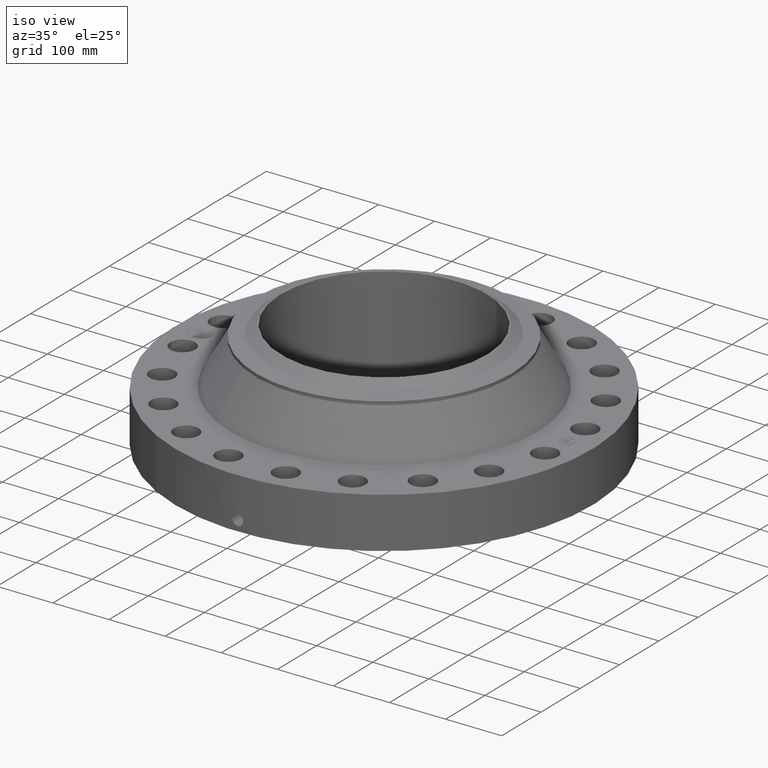
[diagram: clean part render]
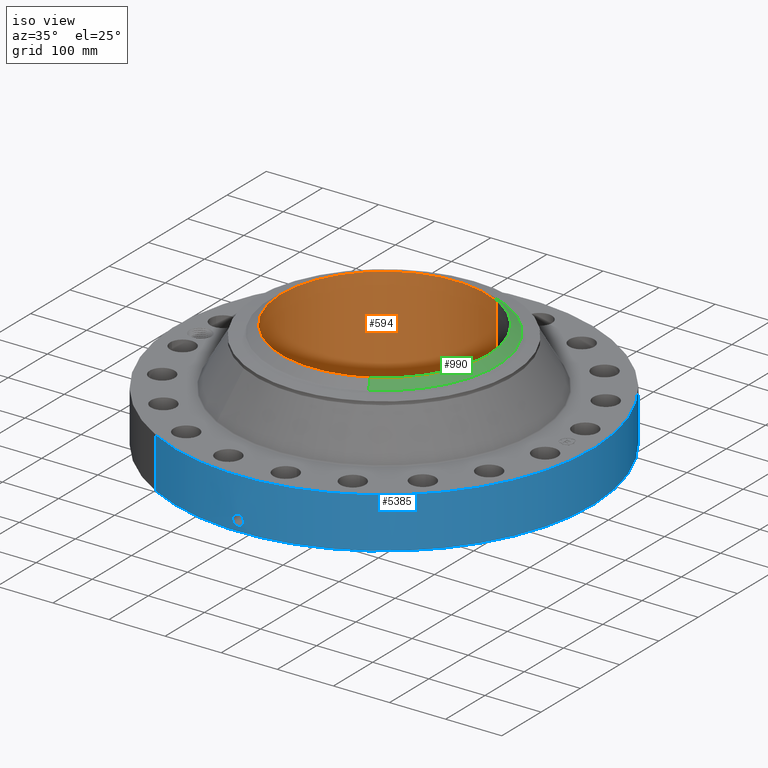
[diagram: same view with three faces highlighted in distinct colors, each labeled with its STEP entity id]
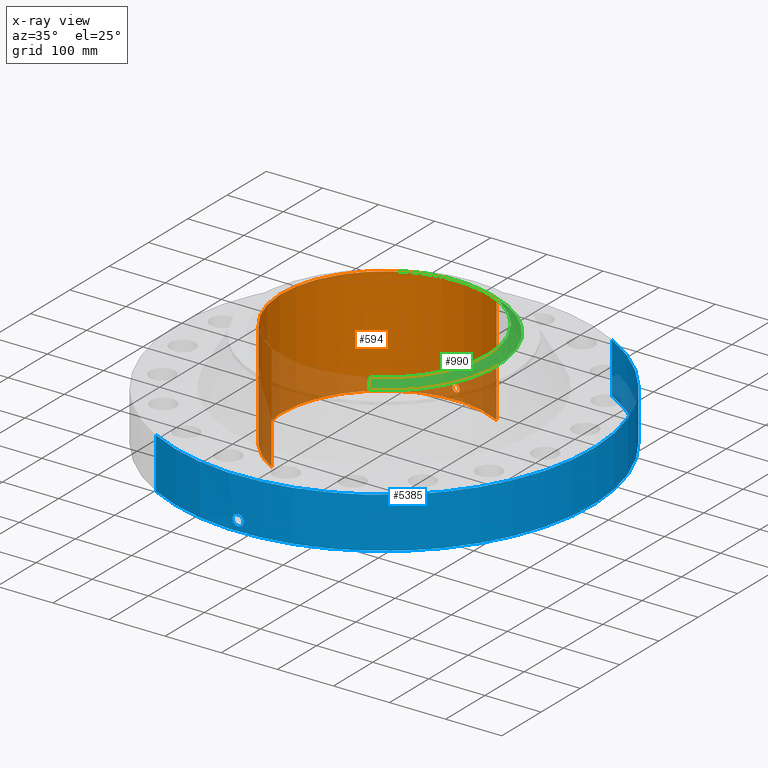
[diagram: x-ray of the same camera — body ghosted, the three highlighted faces saturated]
A machine part, iso view with three faces highlighted in distinct colors.
The next image is the same camera in x-ray (body ghosted, the three faces saturated) — at least one of them is partly hidden behind the body in this view.
Their STEP definitions:

[orange] entity #594 — the highlighted cylindrical surface (partial cylindrical patch) has radius 183.363 mm, axis along (0, 0, -1).
#232=AXIS2_PLACEMENT_3D('Cylinder Axis2P3D',#229,#230,#231) ;
#533=AXIS2_PLACEMENT_3D('Circle Axis2P3D',#531,#532,$) ;
#543=AXIS2_PLACEMENT_3D('Circle Axis2P3D',#541,#542,$) ;
#229=CARTESIAN_POINT('Axis2P3D Location',(0.,0.,3.78100000002)) ;
#238=CARTESIAN_POINT('Vertex',(3.4609729632,6.33526851431,7.56200000003)) ;
#240=CARTESIAN_POINT('Vertex',(-3.4609729632,-6.33526851431,7.56200000003)) ;
#243=CARTESIAN_POINT('Line Origine',(3.4609729632,6.33526851431,3.78100000002)) ;
#247=CARTESIAN_POINT('Vertex',(3.4609729632,6.33526851431,-6.15430716013E-014)) ;
#254=CARTESIAN_POINT('Vertex',(-3.4609729632,-6.33526851431,-6.15430716013E-014)) ;
#257=CARTESIAN_POINT('Line Origine',(-3.4609729632,-6.33526851431,3.78100000002)) ;
#531=CARTESIAN_POINT('Axis2P3D Location',(0.,0.,7.56200000003)) ;
#541=CARTESIAN_POINT('Axis2P3D Location',(0.,0.,-6.15430716013E-014)) ;
#553=CARTESIAN_POINT('Control Point',(0.219395640473,7.21566535763,0.869856384655)) ;
#554=CARTESIAN_POINT('Control Point',(0.194443477239,7.21642403969,0.915531013085)) ;
#555=CARTESIAN_POINT('Control Point',(0.157607221245,7.21743610595,0.954709037248)) ;
#556=CARTESIAN_POINT('Control Point',(0.111113039943,7.21842029589,0.983240979842)) ;
#557=CARTESIAN_POINT('Control Point',(0.0336798237454,7.2192033861,1.00588164333)) ;
#558=CARTESIAN_POINT('Control Point',(-0.0446639367624,7.21893285786,0.998057350616)) ;
#559=CARTESIAN_POINT('Control Point',(-0.0702916783782,7.21872283908,0.99204601083)) ;
#560=CARTESIAN_POINT('Control Point',(-0.14394530985,7.2177946796,0.964218564062)) ;
#561=CARTESIAN_POINT('Control Point',(-0.20323123165,7.21627949124,0.909512207771)) ;
#562=CARTESIAN_POINT('Control Point',(-0.232199349635,7.21528548081,0.863278998575)) ;
#563=CARTESIAN_POINT('Control Point',(-0.255838754644,7.21446805381,0.785129940067)) ;
#564=CARTESIAN_POINT('Control Point',(-0.248285892266,7.2147290081,0.705759511146)) ;
#565=CARTESIAN_POINT('Control Point',(-0.2420520418,7.21494752736,0.679192037329)) ;
#566=CARTESIAN_POINT('Control Point',(-0.232317387719,7.21527246594,0.653796715028)) ;
#567=CARTESIAN_POINT('Control Point',(-0.219395640473,7.21566535763,0.630143615351)) ;
#568=CARTESIAN_POINT('Vertex',(0.219395640473,7.21566535763,0.869856384655)) ;
#570=CARTESIAN_POINT('Vertex',(-0.219395640473,7.21566535763,0.630143615351)) ;
#574=CARTESIAN_POINT('Control Point',(-0.219395640473,7.21566535763,0.630143615351)) ;
#575=CARTESIAN_POINT('Control Point',(-0.194443477231,7.21642403969,0.584468986905)) ;
#576=CARTESIAN_POINT('Control Point',(-0.157607221219,7.21743610595,0.545290962731)) ;
#577=CARTESIAN_POINT('Control Point',(-0.11111303998,7.21842029589,0.516759020177)) ;
#578=CARTESIAN_POINT('Control Point',(-0.0336798237644,7.2192033861,0.494118356671)) ;
#579=CARTESIAN_POINT('Control Point',(0.0446639367618,7.21893285786,0.50194264939)) ;
#580=CARTESIAN_POINT('Control Point',(0.0702916783749,7.21872283908,0.507953989175)) ;
#581=CARTESIAN_POINT('Control Point',(0.143945309899,7.2177946796,0.535781435962)) ;
#582=CARTESIAN_POINT('Control Point',(0.203231231731,7.21627949124,0.59048779231)) ;
#583=CARTESIAN_POINT('Control Point',(0.232199349602,7.21528548081,0.636721001322)) ;
#584=CARTESIAN_POINT('Control Point',(0.255838754649,7.21446805381,0.714870059882)) ;
#585=CARTESIAN_POINT('Control Point',(0.248285892267,7.2147290081,0.794240488858)) ;
#586=CARTESIAN_POINT('Control Point',(0.2420520418,7.21494752736,0.820807962677)) ;
#587=CARTESIAN_POINT('Control Point',(0.232317387719,7.21527246594,0.846203284978)) ;
#588=CARTESIAN_POINT('Control Point',(0.219395640473,7.21566535763,0.869856384655)) ;
#230=DIRECTION('Axis2P3D Direction',(0.,0.,-0.0393700787402)) ;
#231=DIRECTION('Axis2P3D XDirection',(-0.0188750212049,-0.0345504945626,0.)) ;
#244=DIRECTION('Vector Direction',(0.,0.,-0.0393700787402)) ;
#258=DIRECTION('Vector Direction',(0.,0.,-0.0393700787402)) ;
#532=DIRECTION('Axis2P3D Direction',(0.,0.,-0.0393700787402)) ;
#542=DIRECTION('Axis2P3D Direction',(0.,0.,-0.0393700787402)) ;
#245=VECTOR('Line Direction',#244,0.0393700787402) ;
#259=VECTOR('Line Direction',#258,0.0393700787402) ;
#547=ORIENTED_EDGE('',*,*,#535,.F.) ;
#548=ORIENTED_EDGE('',*,*,#261,.T.) ;
#549=ORIENTED_EDGE('',*,*,#545,.T.) ;
#550=ORIENTED_EDGE('',*,*,#249,.F.) ;
#591=ORIENTED_EDGE('',*,*,#572,.F.) ;
#592=ORIENTED_EDGE('',*,*,#589,.F.) ;
#593=FACE_BOUND('',#590,.T.) ;
#594=ADVANCED_FACE('PartBody',(#551,#593),#233,.F.) ;
#552=B_SPLINE_CURVE_WITH_KNOTS('',5,(#553,#554,#555,#556,#557,#558,#559,#560,#561,#562,#563,#564,#565,#566,#567),.UNSPECIFIED.,.F.,.U.,(6,3,3,3,6),(0.,9.34871443996,14.022684847,23.3727090794,28.2140418301),.UNSPECIFIED.) ;
#573=B_SPLINE_CURVE_WITH_KNOTS('',5,(#574,#575,#576,#577,#578,#579,#580,#581,#582,#583,#584,#585,#586,#587,#588),.UNSPECIFIED.,.F.,.U.,(6,3,3,3,6),(0.,9.34871444315,14.0226848503,23.3727090924,28.2140418431),.UNSPECIFIED.) ;
#534=CIRCLE('generated circle',#533,7.21900000003) ;
#544=CIRCLE('generated circle',#543,7.21900000003) ;
#233=CYLINDRICAL_SURFACE('generated cylinder',#232,7.21900000003) ;
#249=EDGE_CURVE('',#239,#248,#246,.T.) ;
#261=EDGE_CURVE('',#241,#255,#260,.T.) ;
#535=EDGE_CURVE('',#241,#239,#534,.T.) ;
#545=EDGE_CURVE('',#255,#248,#544,.T.) ;
#572=EDGE_CURVE('',#569,#571,#552,.T.) ;
#589=EDGE_CURVE('',#571,#569,#573,.T.) ;
#546=EDGE_LOOP('',(#547,#548,#549,#550)) ;
#590=EDGE_LOOP('',(#591,#592)) ;
#551=FACE_OUTER_BOUND('',#546,.T.) ;
#246=LINE('Line',#243,#245) ;
#260=LINE('Line',#257,#259) ;
#239=VERTEX_POINT('',#238) ;
#241=VERTEX_POINT('',#240) ;
#248=VERTEX_POINT('',#247) ;
#255=VERTEX_POINT('',#254) ;
#569=VERTEX_POINT('',#568) ;
#571=VERTEX_POINT('',#570) ;

[blue] entity #5385 — the highlighted cylindrical surface (partial cylindrical patch) has radius 371.475 mm, axis along (0, 0, -1).
#3858=AXIS2_PLACEMENT_3D('Circle Axis2P3D',#3856,#3857,$) ;
#4489=AXIS2_PLACEMENT_3D('Circle Axis2P3D',#4487,#4488,$) ;
#5186=AXIS2_PLACEMENT_3D('Cylinder Axis2P3D',#5183,#5184,#5185) ;
#3851=CARTESIAN_POINT('Vertex',(-7.01159850211,-12.8346449677,2.23792987641E-015)) ;
#3853=CARTESIAN_POINT('Vertex',(7.01159850211,12.8346449677,2.23792987641E-015)) ;
#3856=CARTESIAN_POINT('Axis2P3D Location',(0.,0.,0.)) ;
#4487=CARTESIAN_POINT('Axis2P3D Location',(0.,0.,3.56200000001)) ;
#4491=CARTESIAN_POINT('Vertex',(7.01159850211,12.8346449677,3.56200000001)) ;
#4493=CARTESIAN_POINT('Vertex',(-7.01159850211,-12.8346449677,3.56200000001)) ;
#5183=CARTESIAN_POINT('Axis2P3D Location',(0.,0.,3.78100000002)) ;
#5188=CARTESIAN_POINT('Line Origine',(-7.01159850211,-12.8346449677,1.78100000001)) ;
#5193=CARTESIAN_POINT('Line Origine',(7.01159850211,12.8346449677,1.78100000001)) ;
#5299=CARTESIAN_POINT('Control Point',(0.000716086752884,-14.6249999825,1.1041184612)) ;
#5300=CARTESIAN_POINT('Control Point',(0.0190203187306,-14.6249990863,1.10408148988)) ;
#5301=CARTESIAN_POINT('Control Point',(0.0373213430747,-14.6249635537,1.10262130561)) ;
#5302=CARTESIAN_POINT('Control Point',(0.0553996221663,-14.6248950726,1.09975560669)) ;
#5303=CARTESIAN_POINT('Vertex',(0.000715719218022,-14.6249999825,1.10411851049)) ;
#5305=CARTESIAN_POINT('Vertex',(0.0553907382761,-14.6248953593,1.09975703323)) ;
#5309=CARTESIAN_POINT('Control Point',(0.0553906426159,-14.6248951066,1.09975648393)) ;
#5310=CARTESIAN_POINT('Control Point',(0.0957910872277,-14.6247420931,1.09531626056)) ;
#5311=CARTESIAN_POINT('Control Point',(0.13554731312,-14.6244176887,1.08352583264)) ;
#5312=CARTESIAN_POINT('Control Point',(0.172161792286,-14.6239866425,1.06517074421)) ;
#5313=CARTESIAN_POINT('Vertex',(0.172161792286,-14.6239866425,1.06517074421)) ;
#5317=CARTESIAN_POINT('Control Point',(0.0309704717696,-14.6249672079,0.341185931315)) ;
#5318=CARTESIAN_POINT('Control Point',(0.0960970499225,-14.624829293,0.349430397404)) ;
#5319=CARTESIAN_POINT('Control Point',(0.15916595769,-14.6243332142,0.371292325433)) ;
#5320=CARTESIAN_POINT('Control Point',(0.216216294315,-14.6235308002,0.406104490893)) ;
#5321=CARTESIAN_POINT('Control Point',(0.288565984641,-14.6222181906,0.474194043684)) ;
#5322=CARTESIAN_POINT('Control Point',(0.336122439595,-14.6211483161,0.558637787275)) ;
#5323=CARTESIAN_POINT('Control Point',(0.349159052193,-14.6208369788,0.588701529143)) ;
#5324=CARTESIAN_POINT('Control Point',(0.371366298706,-14.620290059,0.658954862053)) ;
#5325=CARTESIAN_POINT('Control Point',(0.376852433391,-14.6201424353,0.732133985756)) ;
#5326=CARTESIAN_POINT('Control Point',(0.374588858497,-14.620202394,0.772952421507)) ;
#5327=CARTESIAN_POINT('Control Point',(0.356196992667,-14.620681159,0.870678338711)) ;
#5328=CARTESIAN_POINT('Control Point',(0.307903907651,-14.6218049341,0.957874328915)) ;
#5329=CARTESIAN_POINT('Control Point',(0.269657987097,-14.6226140453,1.00315422222)) ;
#5330=CARTESIAN_POINT('Control Point',(0.223443498136,-14.6233829254,1.03946287241)) ;
#5331=CARTESIAN_POINT('Control Point',(0.172161792286,-14.6239866425,1.06517074421)) ;
#5332=CARTESIAN_POINT('Vertex',(0.0309704717696,-14.6249672079,0.341185931315)) ;
#5336=CARTESIAN_POINT('Control Point',(0.0309704717696,-14.6249672079,0.341185931315)) ;
#5337=CARTESIAN_POINT('Control Point',(0.0206420517921,-14.6249890798,0.340874084726)) ;
#5338=CARTESIAN_POINT('Control Point',(0.0103062211378,-14.625000002,0.340937171896)) ;
#5339=CARTESIAN_POINT('Control Point',(-2.72878352367E-006,-14.6250000001,0.341374667805)) ;
#5340=CARTESIAN_POINT('Vertex',(-2.72878354229E-006,-14.6250000001,0.341374667805)) ;
#5344=CARTESIAN_POINT('Control Point',(-0.192662631068,-14.6237309231,0.397344435508)) ;
#5345=CARTESIAN_POINT('Control Point',(-0.149019870144,-14.6243059015,0.371999869199)) ;
#5346=CARTESIAN_POINT('Control Point',(-0.10111907531,-14.6247640417,0.353765749111)) ;
#5347=CARTESIAN_POINT('Control Point',(-0.0508066407806,-14.6249999906,0.343530706904)) ;
#5348=CARTESIAN_POINT('Control Point',(-2.72878353666E-006,-14.6250000001,0.341374667805)) ;
#5349=CARTESIAN_POINT('Vertex',(-0.192662631068,-14.6237309231,0.397344435508)) ;
#5353=CARTESIAN_POINT('Control Point',(-0.192662631068,-14.6237309231,0.397344435508)) ;
#5354=CARTESIAN_POINT('Control Point',(-0.249518043761,-14.6229818726,0.430361953683)) ;
#5355=CARTESIAN_POINT('Control Point',(-0.299619064631,-14.6220454516,0.474691396502)) ;
#5356=CARTESIAN_POINT('Control Point',(-0.339823000142,-14.6210933496,0.528791236235)) ;
#5357=CARTESIAN_POINT('Control Point',(-0.384112236411,-14.6199651971,0.626956102132)) ;
#5358=CARTESIAN_POINT('Control Point',(-0.392725031451,-14.6197247345,0.732244385962)) ;
#5359=CARTESIAN_POINT('Control Point',(-0.390620686182,-14.6197828204,0.772393678633)) ;
#5360=CARTESIAN_POINT('Control Point',(-0.376487311975,-14.6201662088,0.847281981695)) ;
#5361=CARTESIAN_POINT('Control Point',(-0.344392716013,-14.6209577611,0.915701625685)) ;
#5362=CARTESIAN_POINT('Control Point',(-0.325332832508,-14.6214042256,0.946122653944)) ;
#5363=CARTESIAN_POINT('Control Point',(-0.263575029093,-14.6227270884,1.02259978854)) ;
#5364=CARTESIAN_POINT('Control Point',(-0.180406457746,-14.6240432514,1.07561246054)) ;
#5365=CARTESIAN_POINT('Control Point',(-0.121571567801,-14.6246891249,1.09767108549)) ;
#5366=CARTESIAN_POINT('Control Point',(-0.0603045228613,-14.6250001067,1.10711089422)) ;
#5367=CARTESIAN_POINT('Control Point',(2.58579355513E-005,-14.625,1.1041529843)) ;
#5368=CARTESIAN_POINT('Vertex',(2.58579355461E-005,-14.625,1.1041529843)) ;
#5372=CARTESIAN_POINT('Control Point',(0.000715719208393,-14.6249999825,1.10411851047)) ;
#5373=CARTESIAN_POINT('Control Point',(0.000370813091086,-14.6249999994,1.10413607165)) ;
#5374=CARTESIAN_POINT('Control Point',(2.58579406302E-005,-14.625,1.1041529843)) ;
#3857=DIRECTION('Axis2P3D Direction',(0.,0.,-0.0393700787402)) ;
#4488=DIRECTION('Axis2P3D Direction',(0.,0.,-0.0393700787402)) ;
#5184=DIRECTION('Axis2P3D Direction',(0.,0.,-0.0393700787402)) ;
#5185=DIRECTION('Axis2P3D XDirection',(0.0188750212049,0.0345504945626,0.)) ;
#5189=DIRECTION('Vector Direction',(0.,0.,-0.0393700787402)) ;
#5194=DIRECTION('Vector Direction',(0.,0.,-0.0393700787402)) ;
#5190=VECTOR('Line Direction',#5189,0.0393700787402) ;
#5195=VECTOR('Line Direction',#5194,0.0393700787402) ;
#5293=ORIENTED_EDGE('',*,*,#3860,.F.) ;
#5294=ORIENTED_EDGE('',*,*,#5197,.T.) ;
#5295=ORIENTED_EDGE('',*,*,#4495,.T.) ;
#5296=ORIENTED_EDGE('',*,*,#5192,.F.) ;
#5377=ORIENTED_EDGE('',*,*,#5307,.T.) ;
#5378=ORIENTED_EDGE('',*,*,#5315,.T.) ;
#5379=ORIENTED_EDGE('',*,*,#5334,.F.) ;
#5380=ORIENTED_EDGE('',*,*,#5342,.T.) ;
#5381=ORIENTED_EDGE('',*,*,#5351,.F.) ;
#5382=ORIENTED_EDGE('',*,*,#5370,.T.) ;
#5383=ORIENTED_EDGE('',*,*,#5375,.F.) ;
#5384=FACE_BOUND('',#5376,.T.) ;
#5385=ADVANCED_FACE('PartBody',(#5297,#5384),#5187,.T.) ;
#5298=B_SPLINE_CURVE_WITH_KNOTS('',3,(#5299,#5300,#5301,#5302),.UNSPECIFIED.,.F.,.U.,(4,4),(34.6165607894,36.6472417188),.UNSPECIFIED.) ;
#5308=B_SPLINE_CURVE_WITH_KNOTS('',3,(#5309,#5310,#5311,#5312),.UNSPECIFIED.,.F.,.U.,(4,4),(0.,4.5668866418),.UNSPECIFIED.) ;
#5316=B_SPLINE_CURVE_WITH_KNOTS('',5,(#5317,#5318,#5319,#5320,#5321,#5322,#5323,#5324,#5325,#5326,#5327,#5328,#5329,#5330,#5331),.UNSPECIFIED.,.F.,.U.,(6,3,3,3,6),(0.,11.4086060863,17.2512745392,24.6138259142,35.2743508953),.UNSPECIFIED.) ;
#5335=B_SPLINE_CURVE_WITH_KNOTS('',3,(#5336,#5337,#5338,#5339),.UNSPECIFIED.,.F.,.U.,(4,4),(0.,1.07740583904),.UNSPECIFIED.) ;
#5343=B_SPLINE_CURVE_WITH_KNOTS('',4,(#5344,#5345,#5346,#5347,#5348),.UNSPECIFIED.,.F.,.U.,(5,5),(0.,7.07947066288),.UNSPECIFIED.) ;
#5352=B_SPLINE_CURVE_WITH_KNOTS('',5,(#5353,#5354,#5355,#5356,#5357,#5358,#5359,#5360,#5361,#5362,#5363,#5364,#5365,#5366,#5367),.UNSPECIFIED.,.F.,.U.,(6,3,3,3,6),(0.,11.5284358913,18.6014747609,25.0195536828,36.2965539835),.UNSPECIFIED.) ;
#5371=B_SPLINE_CURVE_WITH_KNOTS('',2,(#5372,#5373,#5374),.UNSPECIFIED.,.F.,.U.,(3,3),(1.02315573588,1.04894744785),.UNSPECIFIED.) ;
#3859=CIRCLE('generated circle',#3858,14.6250000001) ;
#4490=CIRCLE('generated circle',#4489,14.6250000001) ;
#5187=CYLINDRICAL_SURFACE('generated cylinder',#5186,14.6250000001) ;
#3860=EDGE_CURVE('',#3854,#3852,#3859,.T.) ;
#4495=EDGE_CURVE('',#4492,#4494,#4490,.T.) ;
#5192=EDGE_CURVE('',#3852,#4494,#5191,.F.) ;
#5197=EDGE_CURVE('',#3854,#4492,#5196,.F.) ;
#5307=EDGE_CURVE('',#5304,#5306,#5298,.T.) ;
#5315=EDGE_CURVE('',#5306,#5314,#5308,.T.) ;
#5334=EDGE_CURVE('',#5333,#5314,#5316,.T.) ;
#5342=EDGE_CURVE('',#5333,#5341,#5335,.T.) ;
#5351=EDGE_CURVE('',#5350,#5341,#5343,.T.) ;
#5370=EDGE_CURVE('',#5350,#5369,#5352,.T.) ;
#5375=EDGE_CURVE('',#5304,#5369,#5371,.T.) ;
#5292=EDGE_LOOP('',(#5293,#5294,#5295,#5296)) ;
#5376=EDGE_LOOP('',(#5377,#5378,#5379,#5380,#5381,#5382,#5383)) ;
#5297=FACE_OUTER_BOUND('',#5292,.T.) ;
#5191=LINE('Line',#5188,#5190) ;
#5196=LINE('Line',#5193,#5195) ;
#3852=VERTEX_POINT('',#3851) ;
#3854=VERTEX_POINT('',#3853) ;
#4492=VERTEX_POINT('',#4491) ;
#4494=VERTEX_POINT('',#4493) ;
#5304=VERTEX_POINT('',#5303) ;
#5306=VERTEX_POINT('',#5305) ;
#5314=VERTEX_POINT('',#5313) ;
#5333=VERTEX_POINT('',#5332) ;
#5341=VERTEX_POINT('',#5340) ;
#5350=VERTEX_POINT('',#5349) ;
#5369=VERTEX_POINT('',#5368) ;

[green] entity #990 — the highlighted conical surface has half-angle 52.5 deg.
#515=AXIS2_PLACEMENT_3D('Circle Axis2P3D',#513,#514,$) ;
#951=AXIS2_PLACEMENT_3D('Cone Axis2P3D',#948,#949,#950) ;
#981=AXIS2_PLACEMENT_3D('Circle Axis2P3D',#979,#980,$) ;
#513=CARTESIAN_POINT('Axis2P3D Location',(0.,0.,7.56200000003)) ;
#517=CARTESIAN_POINT('Vertex',(3.49872300561,-6.40436950344,7.56200000003)) ;
#519=CARTESIAN_POINT('Vertex',(-3.49872300561,6.40436950344,7.56200000003)) ;
#948=CARTESIAN_POINT('Axis2P3D Location',(0.,0.,7.56200000003)) ;
#953=CARTESIAN_POINT('Line Origine',(-3.65366430816,6.68798765534,7.3140143726)) ;
#957=CARTESIAN_POINT('Vertex',(-3.80860561071,6.97160580725,7.06602874516)) ;
#964=CARTESIAN_POINT('Vertex',(3.80860561071,-6.97160580725,7.06602874516)) ;
#967=CARTESIAN_POINT('Line Origine',(3.65366430816,-6.68798765534,7.3140143726)) ;
#979=CARTESIAN_POINT('Axis2P3D Location',(0.,0.,7.06602874516)) ;
#514=DIRECTION('Axis2P3D Direction',(0.,0.,-0.0393700787402)) ;
#949=DIRECTION('Axis2P3D Direction',(-0.,-0.,-0.0393700787402)) ;
#950=DIRECTION('Axis2P3D XDirection',(-0.0188750212049,0.0345504945626,0.)) ;
#954=DIRECTION('Vector Direction',(-0.014974561121,0.02741075027,-0.023966985394)) ;
#968=DIRECTION('Vector Direction',(0.014974561121,-0.02741075027,-0.023966985394)) ;
#980=DIRECTION('Axis2P3D Direction',(0.,0.,-0.0393700787402)) ;
#955=VECTOR('Line Direction',#954,0.0393700787402) ;
#969=VECTOR('Line Direction',#968,0.0393700787402) ;
#985=ORIENTED_EDGE('',*,*,#521,.F.) ;
#986=ORIENTED_EDGE('',*,*,#971,.T.) ;
#987=ORIENTED_EDGE('',*,*,#983,.T.) ;
#988=ORIENTED_EDGE('',*,*,#959,.F.) ;
#990=ADVANCED_FACE('PartBody',(#989),#952,.T.) ;
#516=CIRCLE('generated circle',#515,7.29774015751) ;
#982=CIRCLE('generated circle',#981,7.94410248106) ;
#952=CONICAL_SURFACE('Cone',#951,7.29774015751,0.916297857297) ;
#521=EDGE_CURVE('',#518,#520,#516,.F.) ;
#959=EDGE_CURVE('',#520,#958,#956,.T.) ;
#971=EDGE_CURVE('',#518,#965,#970,.T.) ;
#983=EDGE_CURVE('',#965,#958,#982,.F.) ;
#984=EDGE_LOOP('',(#985,#986,#987,#988)) ;
#989=FACE_OUTER_BOUND('',#984,.T.) ;
#956=LINE('Line',#953,#955) ;
#970=LINE('Line',#967,#969) ;
#518=VERTEX_POINT('',#517) ;
#520=VERTEX_POINT('',#519) ;
#958=VERTEX_POINT('',#957) ;
#965=VERTEX_POINT('',#964) ;